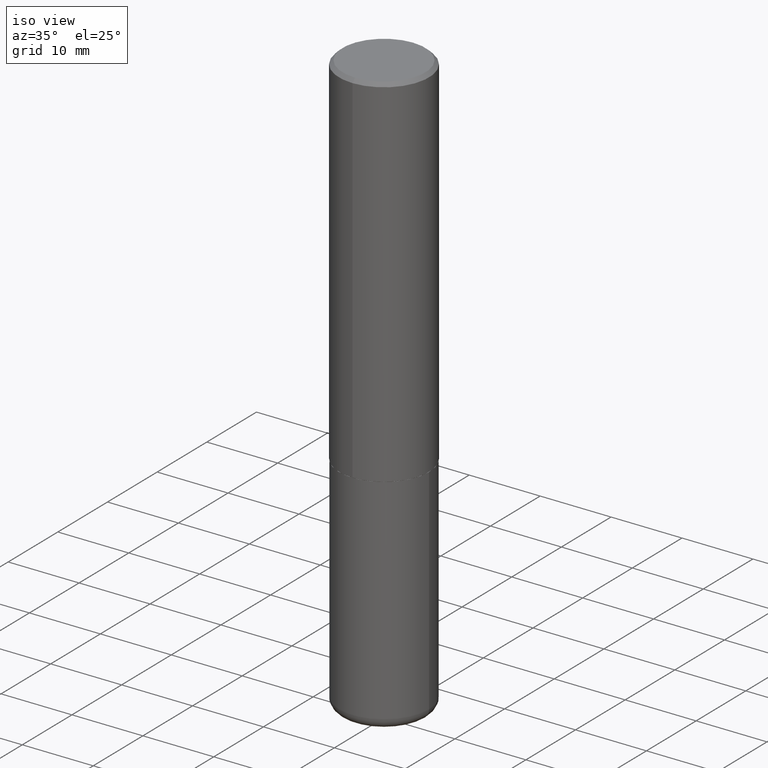
[diagram: clean part render]
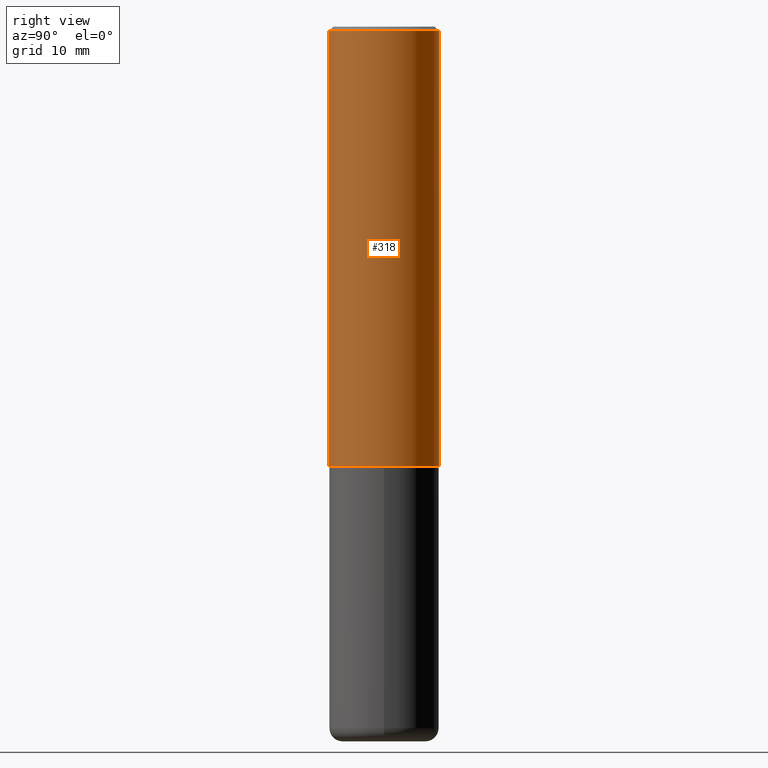
[diagram: tour spotlight — one face highlighted and labeled with its STEP entity id]
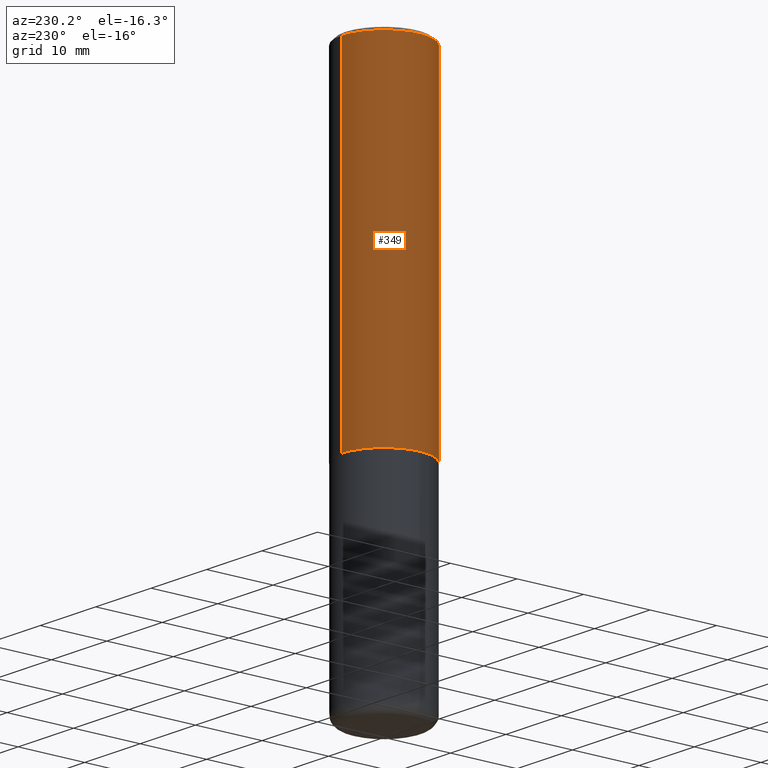
[diagram: tour spotlight — one face highlighted and labeled with its STEP entity id]
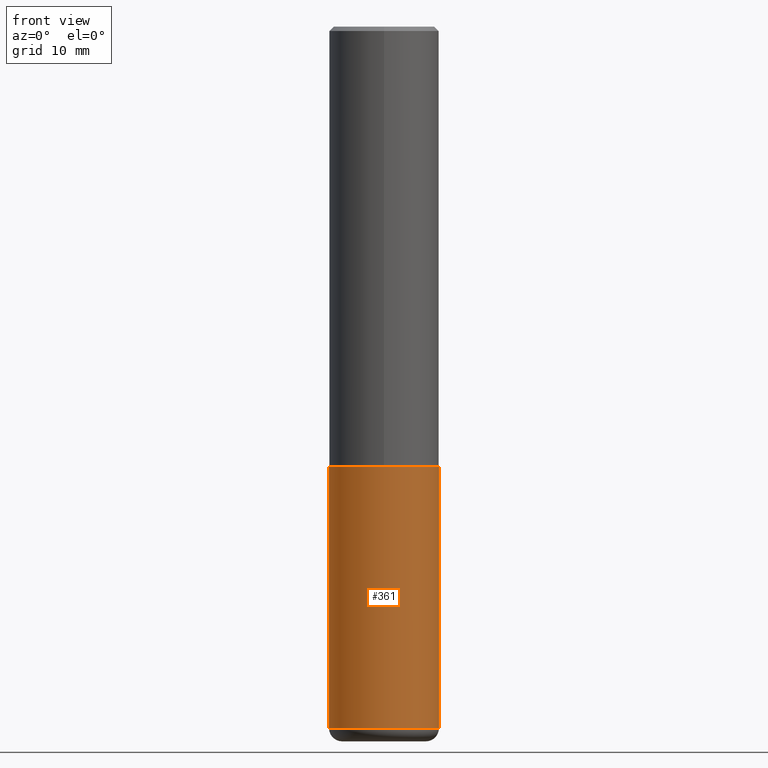
[diagram: tour spotlight — one face highlighted and labeled with its STEP entity id]
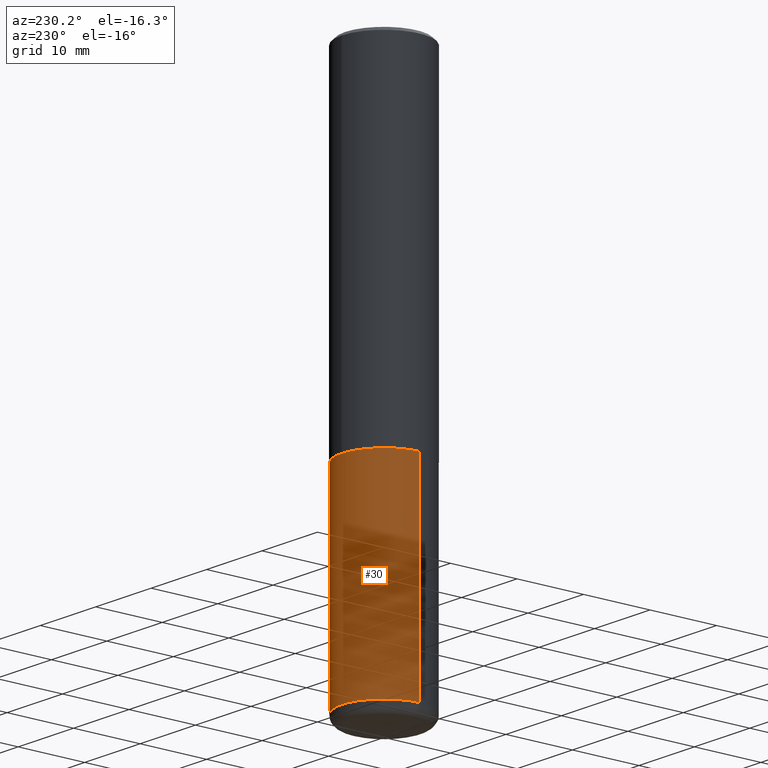
[diagram: tour spotlight — one face highlighted and labeled with its STEP entity id]
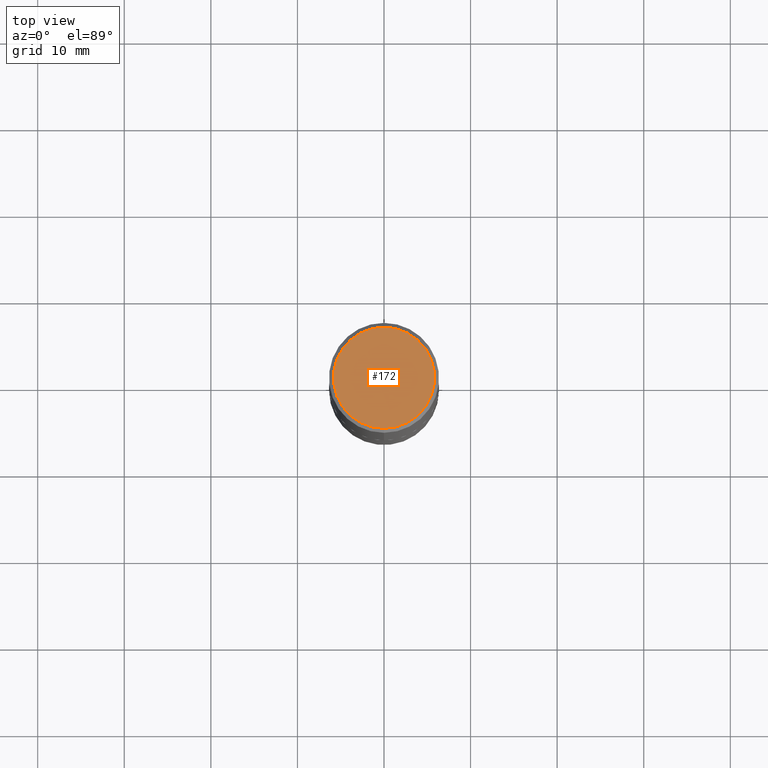
[diagram: tour spotlight — one face highlighted and labeled with its STEP entity id]
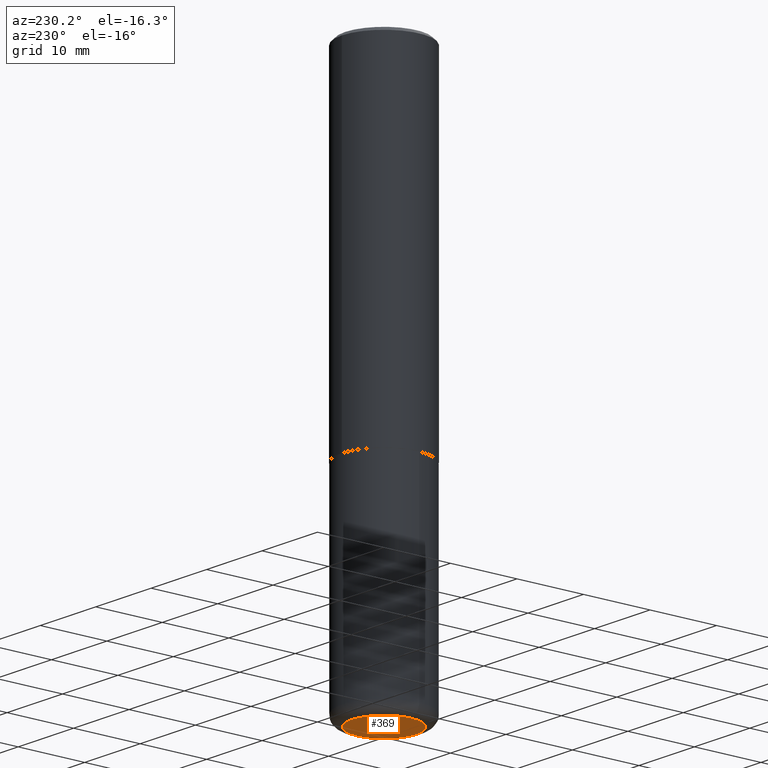
[diagram: tour spotlight — one face highlighted and labeled with its STEP entity id]
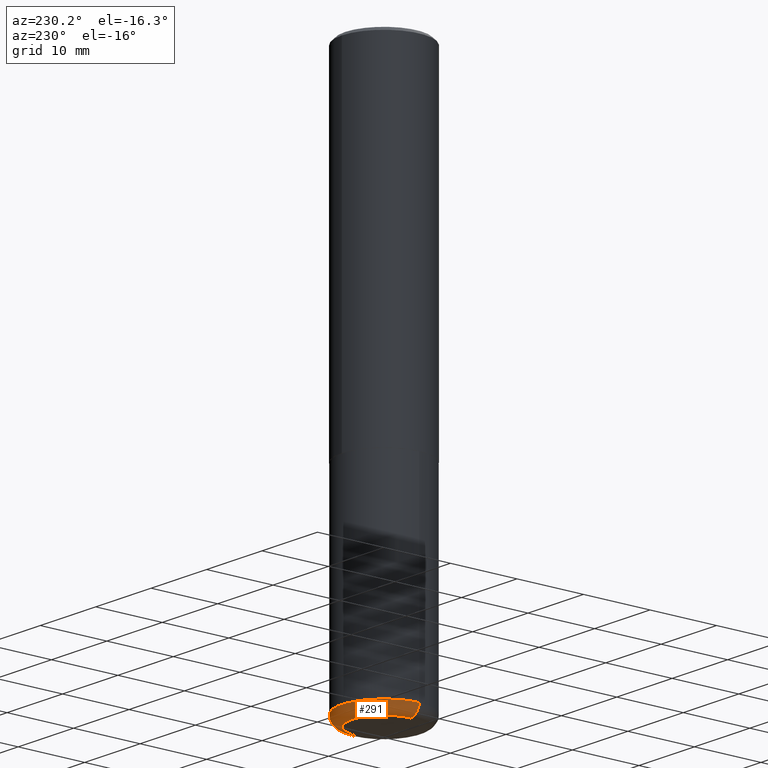
[diagram: tour spotlight — one face highlighted and labeled with its STEP entity id]
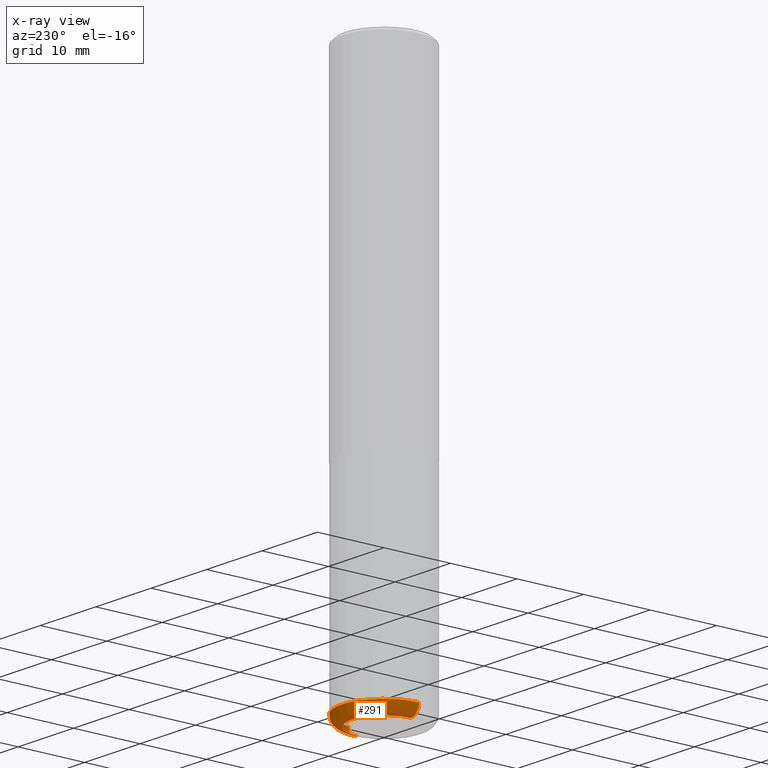
[diagram: x-ray of the same camera — body ghosted, this tour face saturated]
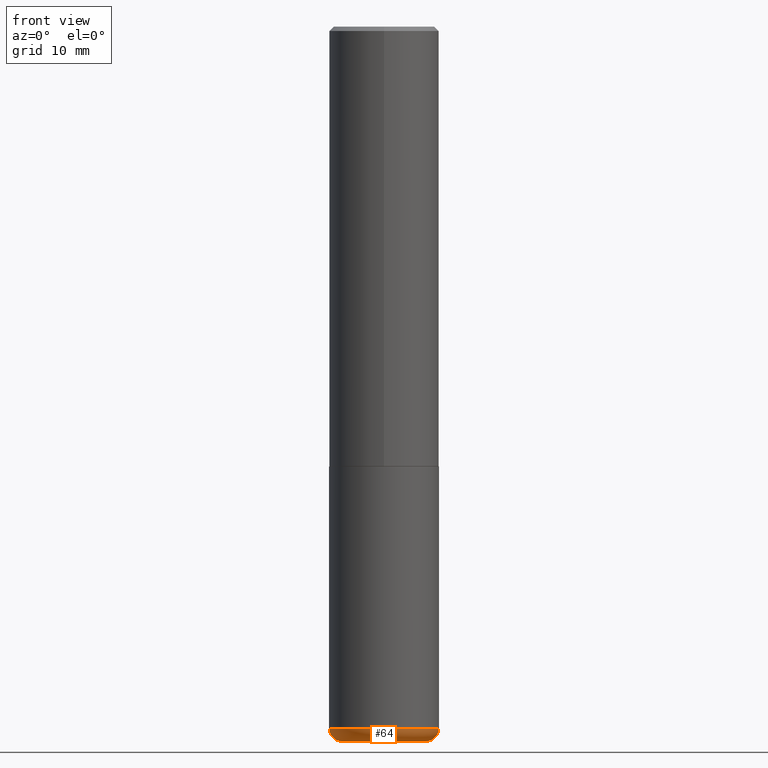
[diagram: tour spotlight — one face highlighted and labeled with its STEP entity id]
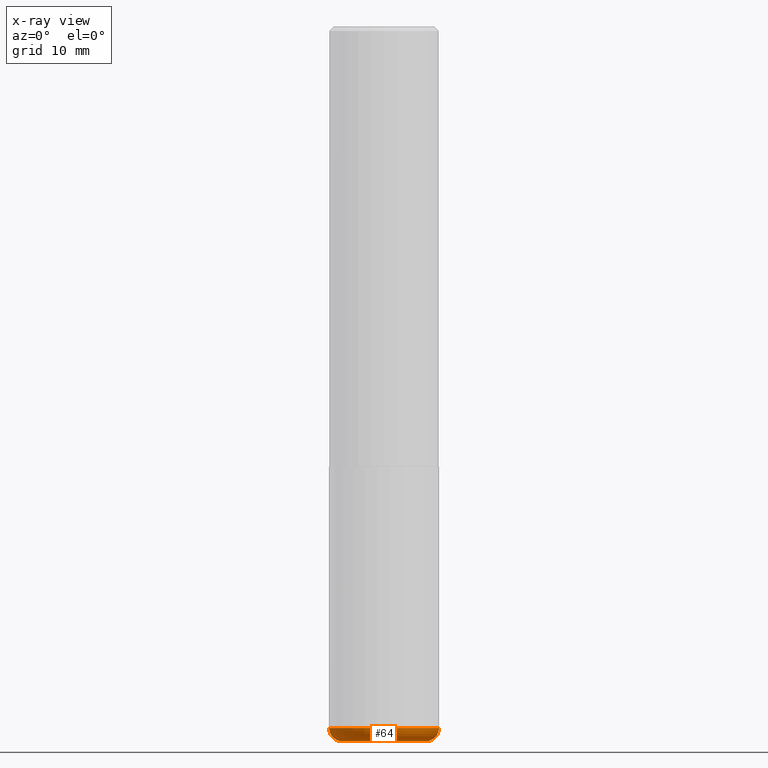
[diagram: x-ray of the same camera — body ghosted, this tour face saturated]
A machine part: a face-by-face anatomy tour. The part has 14 B-rep faces; the first image is the clean iso view, then the 8 largest visible faces are spotlighted one at a time (largest first), each with its STEP entity span.

Face 1 — right view, entity #318. In plain terms, the highlighted cylindrical surface (partial cylindrical patch) has radius 6.35 mm, axis along (-0, 0, 1).
Definition (entity closure, byte-faithful):
#20 = DIRECTION ( 'NONE',  ( -2.444914538755677752E-29, 3.492275081349073750E-15, 1.000000000000000000 ) ) ;
#26 = DIRECTION ( 'NONE',  ( -6.982962677686265922E-15, -1.000000000000000000, 3.500180241882337261E-15 ) ) ;
#34 = VERTEX_POINT ( 'NONE', #405 ) ;
#59 = CARTESIAN_POINT ( 'NONE',  ( -1.745740669421567467E-15, -0.2500000000000001110, 8.730687703372688319E-16 ) ) ;
#76 = CARTESIAN_POINT ( 'NONE',  ( 0.000000000000000000, 0.000000000000000000, 0.000000000000000000 ) ) ;
#92 = VERTEX_POINT ( 'NONE', #192 ) ;
#101 = VECTOR ( 'NONE', #186, 39.37007874015748143 ) ;
#117 = AXIS2_PLACEMENT_3D ( 'NONE', #355, #131, #26 ) ;
#122 = EDGE_CURVE ( 'NONE', #92, #125, #252, .T. ) ;
#125 = VERTEX_POINT ( 'NONE', #317 ) ;
#131 = DIRECTION ( 'NONE',  ( -2.444914538755677752E-29, 3.492275081349073750E-15, 1.000000000000000000 ) ) ;
#144 = VECTOR ( 'NONE', #398, 39.37007874015748143 ) ;
#151 = DIRECTION ( 'NONE',  ( -6.982962677686266711E-15, -1.000000000000000000, 3.278217592397113101E-15 ) ) ;
#155 = CIRCLE ( 'NONE', #117, 0.2500000000000000000 ) ;
#156 = CARTESIAN_POINT ( 'NONE',  ( 1.776356839400251254E-15, 0.2500000000000001110, -8.730687703372688319E-16 ) ) ;
#176 = FACE_OUTER_BOUND ( 'NONE', #325, .T. ) ;
#183 = EDGE_CURVE ( 'NONE', #34, #92, #215, .T. ) ;
#186 = DIRECTION ( 'NONE',  ( -2.444914538755678032E-29, 3.492275081349073750E-15, 1.000000000000000000 ) ) ;
#192 = CARTESIAN_POINT ( 'NONE',  ( 1.776356839400276103E-15, 0.2499999999999933109, -1.999000000000000776 ) ) ;
#209 = AXIS2_PLACEMENT_3D ( 'NONE', #76, #212, #266 ) ;
#212 = DIRECTION ( 'NONE',  ( -2.444914538755677752E-29, 3.492275081349073750E-15, 1.000000000000000000 ) ) ;
#214 = LINE ( 'NONE', #59, #144 ) ;
#215 = CIRCLE ( 'NONE', #353, 0.2500000000000002220 ) ;
#242 = VERTEX_POINT ( 'NONE', #352 ) ;
#252 = LINE ( 'NONE', #156, #101 ) ;
#266 = DIRECTION ( 'NONE',  ( -6.982962677686266711E-15, -1.000000000000000000, 3.492275081349073750E-15 ) ) ;
#270 = ORIENTED_EDGE ( 'NONE', *, *, #304, .F. ) ;
#282 = EDGE_CURVE ( 'NONE', #242, #125, #155, .T. ) ;
#304 = EDGE_CURVE ( 'NONE', #34, #242, #214, .T. ) ;
#317 = CARTESIAN_POINT ( 'NONE',  ( 1.745740669421566875E-15, 0.2499999999999999167, -0.02000000000000093023 ) ) ;
#318 = ADVANCED_FACE ( 'NONE', ( #176 ), #397, .T. ) ;
#325 = EDGE_LOOP ( 'NONE', ( #368, #341, #396, #270 ) ) ;
#341 = ORIENTED_EDGE ( 'NONE', *, *, #122, .T. ) ;
#344 = CARTESIAN_POINT ( 'NONE',  ( 4.887384162972599193E-29, -6.981057887616797828E-15, -1.998999999999999888 ) ) ;
#352 = CARTESIAN_POINT ( 'NONE',  ( -1.715124499442882299E-15, -0.2500000000000000555, -0.01999999999999918163 ) ) ;
#353 = AXIS2_PLACEMENT_3D ( 'NONE', #344, #20, #151 ) ;
#355 = CARTESIAN_POINT ( 'NONE',  ( 4.889829077511369061E-31, -6.984550162698166284E-17, -0.02000000000000005593 ) ) ;
#368 = ORIENTED_EDGE ( 'NONE', *, *, #183, .T. ) ;
#396 = ORIENTED_EDGE ( 'NONE', *, *, #282, .F. ) ;
#397 = CYLINDRICAL_SURFACE ( 'NONE', #209, 0.2500000000000001110 ) ;
#398 = DIRECTION ( 'NONE',  ( -2.444914538755678032E-29, 3.492275081349073750E-15, 1.000000000000000000 ) ) ;
#405 = CARTESIAN_POINT ( 'NONE',  ( -1.745740669421519346E-15, -0.2500000000000072164, -1.998999999999999000 ) ) ;

Face 2 — auxiliary view, entity #349. In plain terms, the highlighted cylindrical surface (partial cylindrical patch) has radius 6.35 mm, axis along (-0, 0, 1).
Definition (entity closure, byte-faithful):
#23 = AXIS2_PLACEMENT_3D ( 'NONE', #269, #72, #233 ) ;
#33 = CIRCLE ( 'NONE', #174, 0.2500000000000000000 ) ;
#34 = VERTEX_POINT ( 'NONE', #405 ) ;
#59 = CARTESIAN_POINT ( 'NONE',  ( -1.745740669421567467E-15, -0.2500000000000001110, 8.730687703372688319E-16 ) ) ;
#72 = DIRECTION ( 'NONE',  ( -2.444914538755677752E-29, 3.492275081349073750E-15, 1.000000000000000000 ) ) ;
#74 = AXIS2_PLACEMENT_3D ( 'NONE', #202, #260, #389 ) ;
#92 = VERTEX_POINT ( 'NONE', #192 ) ;
#97 = CYLINDRICAL_SURFACE ( 'NONE', #23, 0.2500000000000001110 ) ;
#99 = FACE_OUTER_BOUND ( 'NONE', #302, .T. ) ;
#101 = VECTOR ( 'NONE', #186, 39.37007874015748143 ) ;
#122 = EDGE_CURVE ( 'NONE', #92, #125, #252, .T. ) ;
#125 = VERTEX_POINT ( 'NONE', #317 ) ;
#137 = ORIENTED_EDGE ( 'NONE', *, *, #122, .F. ) ;
#138 = ORIENTED_EDGE ( 'NONE', *, *, #243, .T. ) ;
#144 = VECTOR ( 'NONE', #398, 39.37007874015748143 ) ;
#156 = CARTESIAN_POINT ( 'NONE',  ( 1.776356839400251254E-15, 0.2500000000000001110, -8.730687703372688319E-16 ) ) ;
#174 = AXIS2_PLACEMENT_3D ( 'NONE', #356, #263, #328 ) ;
#186 = DIRECTION ( 'NONE',  ( -2.444914538755678032E-29, 3.492275081349073750E-15, 1.000000000000000000 ) ) ;
#192 = CARTESIAN_POINT ( 'NONE',  ( 1.776356839400276103E-15, 0.2499999999999933109, -1.999000000000000776 ) ) ;
#202 = CARTESIAN_POINT ( 'NONE',  ( 4.887384162972599193E-29, -6.981057887616797828E-15, -1.998999999999999888 ) ) ;
#214 = LINE ( 'NONE', #59, #144 ) ;
#233 = DIRECTION ( 'NONE',  ( -6.982962677686266711E-15, -1.000000000000000000, 3.492275081349073750E-15 ) ) ;
#242 = VERTEX_POINT ( 'NONE', #352 ) ;
#243 = EDGE_CURVE ( 'NONE', #92, #34, #274, .T. ) ;
#252 = LINE ( 'NONE', #156, #101 ) ;
#256 = EDGE_CURVE ( 'NONE', #125, #242, #33, .T. ) ;
#260 = DIRECTION ( 'NONE',  ( -2.444914538755677752E-29, 3.492275081349073750E-15, 1.000000000000000000 ) ) ;
#263 = DIRECTION ( 'NONE',  ( -2.444914538755677752E-29, 3.492275081349073750E-15, 1.000000000000000000 ) ) ;
#269 = CARTESIAN_POINT ( 'NONE',  ( 0.000000000000000000, 0.000000000000000000, 0.000000000000000000 ) ) ;
#274 = CIRCLE ( 'NONE', #74, 0.2500000000000002220 ) ;
#276 = ORIENTED_EDGE ( 'NONE', *, *, #256, .F. ) ;
#302 = EDGE_LOOP ( 'NONE', ( #137, #138, #357, #276 ) ) ;
#304 = EDGE_CURVE ( 'NONE', #34, #242, #214, .T. ) ;
#317 = CARTESIAN_POINT ( 'NONE',  ( 1.745740669421566875E-15, 0.2499999999999999167, -0.02000000000000093023 ) ) ;
#328 = DIRECTION ( 'NONE',  ( -6.982962677686265922E-15, -1.000000000000000000, 3.500180241882337261E-15 ) ) ;
#349 = ADVANCED_FACE ( 'NONE', ( #99 ), #97, .T. ) ;
#352 = CARTESIAN_POINT ( 'NONE',  ( -1.715124499442882299E-15, -0.2500000000000000555, -0.01999999999999918163 ) ) ;
#356 = CARTESIAN_POINT ( 'NONE',  ( 4.889829077511369061E-31, -6.984550162698166284E-17, -0.02000000000000005593 ) ) ;
#357 = ORIENTED_EDGE ( 'NONE', *, *, #304, .T. ) ;
#389 = DIRECTION ( 'NONE',  ( -6.982962677686266711E-15, -1.000000000000000000, 3.278217592397113101E-15 ) ) ;
#398 = DIRECTION ( 'NONE',  ( -2.444914538755678032E-29, 3.492275081349073750E-15, 1.000000000000000000 ) ) ;
#405 = CARTESIAN_POINT ( 'NONE',  ( -1.745740669421519346E-15, -0.2500000000000072164, -1.998999999999999000 ) ) ;

Face 3 — front view, entity #361. In plain terms, the highlighted cylindrical surface (partial cylindrical patch) has radius 6.35 mm, axis along (-0, 0, 1).
Definition (entity closure, byte-faithful):
#4 = LINE ( 'NONE', #234, #316 ) ;
#6 = ORIENTED_EDGE ( 'NONE', *, *, #71, .F. ) ;
#27 = DIRECTION ( 'NONE',  ( 1.000000000000000000, -6.982962677686263555E-15, 0.000000000000000000 ) ) ;
#35 = EDGE_CURVE ( 'NONE', #44, #109, #107, .T. ) ;
#44 = VERTEX_POINT ( 'NONE', #120 ) ;
#46 = CIRCLE ( 'NONE', #330, 0.2500000000000000000 ) ;
#50 = DIRECTION ( 'NONE',  ( 1.000000000000000000, -6.982962677686266711E-15, 4.876176775795935793E-29 ) ) ;
#53 = CARTESIAN_POINT ( 'NONE',  ( 0.000000000000000000, 0.000000000000000000, 0.000000000000000000 ) ) ;
#57 = DIRECTION ( 'NONE',  ( 1.000000000000000000, -6.982962677686266711E-15, 0.000000000000000000 ) ) ;
#58 = DIRECTION ( 'NONE',  ( -2.445468806185136877E-29, 3.491481338843145188E-15, 1.000000000000000000 ) ) ;
#71 = EDGE_CURVE ( 'NONE', #169, #329, #46, .T. ) ;
#96 = ORIENTED_EDGE ( 'NONE', *, *, #35, .T. ) ;
#100 = EDGE_CURVE ( 'NONE', #109, #329, #286, .T. ) ;
#107 = CIRCLE ( 'NONE', #410, 0.2499999999999999722 ) ;
#109 = VERTEX_POINT ( 'NONE', #285 ) ;
#116 = CARTESIAN_POINT ( 'NONE',  ( 7.801045491730585789E-29, -1.113782547090963453E-14, -3.189999999999999947 ) ) ;
#120 = CARTESIAN_POINT ( 'NONE',  ( -0.2499999999999999167, -9.361468631509385644E-15, -3.189999999999999947 ) ) ;
#157 = DIRECTION ( 'NONE',  ( -2.445468806185136597E-29, 3.491481338843145583E-15, 1.000000000000000000 ) ) ;
#169 = VERTEX_POINT ( 'NONE', #190 ) ;
#187 = DIRECTION ( 'NONE',  ( -2.445468806185136597E-29, 3.491481338843145583E-15, 1.000000000000000000 ) ) ;
#190 = CARTESIAN_POINT ( 'NONE',  ( -0.2500000000000000000, -7.284037234897712778E-15, -2.000000000000000000 ) ) ;
#210 = CYLINDRICAL_SURFACE ( 'NONE', #416, 0.2500000000000000000 ) ;
#218 = CARTESIAN_POINT ( 'NONE',  ( 4.890937612370273194E-29, -6.982962677686291165E-15, -2.000000000000000000 ) ) ;
#225 = EDGE_CURVE ( 'NONE', #44, #169, #4, .T. ) ;
#226 = DIRECTION ( 'NONE',  ( -2.445468806185136877E-29, 3.491481338843145188E-15, 1.000000000000000000 ) ) ;
#234 = CARTESIAN_POINT ( 'NONE',  ( -0.2500000000000000000, 1.776356839400250465E-15, -1.229733772563726445E-29 ) ) ;
#236 = VECTOR ( 'NONE', #58, 39.37007874015748143 ) ;
#285 = CARTESIAN_POINT ( 'NONE',  ( 0.2499999999999999167, -1.288356614033120121E-14, -3.189999999999999947 ) ) ;
#286 = LINE ( 'NONE', #372, #236 ) ;
#294 = FACE_OUTER_BOUND ( 'NONE', #386, .T. ) ;
#298 = ORIENTED_EDGE ( 'NONE', *, *, #100, .T. ) ;
#316 = VECTOR ( 'NONE', #226, 39.37007874015748143 ) ;
#329 = VERTEX_POINT ( 'NONE', #339 ) ;
#330 = AXIS2_PLACEMENT_3D ( 'NONE', #218, #157, #57 ) ;
#337 = DIRECTION ( 'NONE',  ( -2.445468806185136597E-29, 3.491481338843145583E-15, 1.000000000000000000 ) ) ;
#339 = CARTESIAN_POINT ( 'NONE',  ( 0.2500000000000000000, -8.728703347107857054E-15, -2.000000000000000000 ) ) ;
#361 = ADVANCED_FACE ( 'NONE', ( #294 ), #210, .T. ) ;
#370 = ORIENTED_EDGE ( 'NONE', *, *, #225, .F. ) ;
#372 = CARTESIAN_POINT ( 'NONE',  ( 0.2500000000000000000, -1.745740669421566678E-15, 1.219044193948983948E-29 ) ) ;
#386 = EDGE_LOOP ( 'NONE', ( #370, #96, #298, #6 ) ) ;
#410 = AXIS2_PLACEMENT_3D ( 'NONE', #116, #187, #27 ) ;
#416 = AXIS2_PLACEMENT_3D ( 'NONE', #53, #337, #50 ) ;

Face 4 — auxiliary view, entity #30. In plain terms, the highlighted cylindrical surface (partial cylindrical patch) has radius 6.35 mm, axis along (-0, 0, 1).
Definition (entity closure, byte-faithful):
#1 = CARTESIAN_POINT ( 'NONE',  ( 4.890937612370273194E-29, -6.982962677686291165E-15, -2.000000000000000000 ) ) ;
#4 = LINE ( 'NONE', #234, #316 ) ;
#30 = ADVANCED_FACE ( 'NONE', ( #79 ), #213, .T. ) ;
#44 = VERTEX_POINT ( 'NONE', #120 ) ;
#52 = ORIENTED_EDGE ( 'NONE', *, *, #100, .F. ) ;
#58 = DIRECTION ( 'NONE',  ( -2.445468806185136877E-29, 3.491481338843145188E-15, 1.000000000000000000 ) ) ;
#63 = DIRECTION ( 'NONE',  ( -2.445468806185136597E-29, 3.491481338843145583E-15, 1.000000000000000000 ) ) ;
#65 = DIRECTION ( 'NONE',  ( 1.000000000000000000, -6.982962677686266711E-15, 4.876176775795935793E-29 ) ) ;
#70 = CIRCLE ( 'NONE', #324, 0.2499999999999999722 ) ;
#75 = EDGE_LOOP ( 'NONE', ( #331, #207, #203, #52 ) ) ;
#79 = FACE_OUTER_BOUND ( 'NONE', #75, .T. ) ;
#100 = EDGE_CURVE ( 'NONE', #109, #329, #286, .T. ) ;
#109 = VERTEX_POINT ( 'NONE', #285 ) ;
#120 = CARTESIAN_POINT ( 'NONE',  ( -0.2499999999999999167, -9.361468631509385644E-15, -3.189999999999999947 ) ) ;
#128 = DIRECTION ( 'NONE',  ( 1.000000000000000000, -6.982962677686266711E-15, 0.000000000000000000 ) ) ;
#169 = VERTEX_POINT ( 'NONE', #190 ) ;
#181 = AXIS2_PLACEMENT_3D ( 'NONE', #1, #257, #128 ) ;
#190 = CARTESIAN_POINT ( 'NONE',  ( -0.2500000000000000000, -7.284037234897712778E-15, -2.000000000000000000 ) ) ;
#194 = DIRECTION ( 'NONE',  ( 1.000000000000000000, -6.982962677686263555E-15, 0.000000000000000000 ) ) ;
#203 = ORIENTED_EDGE ( 'NONE', *, *, #219, .F. ) ;
#207 = ORIENTED_EDGE ( 'NONE', *, *, #225, .T. ) ;
#213 = CYLINDRICAL_SURFACE ( 'NONE', #401, 0.2500000000000000000 ) ;
#219 = EDGE_CURVE ( 'NONE', #329, #169, #343, .T. ) ;
#225 = EDGE_CURVE ( 'NONE', #44, #169, #4, .T. ) ;
#226 = DIRECTION ( 'NONE',  ( -2.445468806185136877E-29, 3.491481338843145188E-15, 1.000000000000000000 ) ) ;
#234 = CARTESIAN_POINT ( 'NONE',  ( -0.2500000000000000000, 1.776356839400250465E-15, -1.229733772563726445E-29 ) ) ;
#236 = VECTOR ( 'NONE', #58, 39.37007874015748143 ) ;
#257 = DIRECTION ( 'NONE',  ( -2.445468806185136597E-29, 3.491481338843145583E-15, 1.000000000000000000 ) ) ;
#284 = CARTESIAN_POINT ( 'NONE',  ( 0.000000000000000000, 0.000000000000000000, 0.000000000000000000 ) ) ;
#285 = CARTESIAN_POINT ( 'NONE',  ( 0.2499999999999999167, -1.288356614033120121E-14, -3.189999999999999947 ) ) ;
#286 = LINE ( 'NONE', #372, #236 ) ;
#316 = VECTOR ( 'NONE', #226, 39.37007874015748143 ) ;
#324 = AXIS2_PLACEMENT_3D ( 'NONE', #381, #63, #194 ) ;
#329 = VERTEX_POINT ( 'NONE', #339 ) ;
#331 = ORIENTED_EDGE ( 'NONE', *, *, #417, .T. ) ;
#339 = CARTESIAN_POINT ( 'NONE',  ( 0.2500000000000000000, -8.728703347107857054E-15, -2.000000000000000000 ) ) ;
#343 = CIRCLE ( 'NONE', #181, 0.2500000000000000000 ) ;
#372 = CARTESIAN_POINT ( 'NONE',  ( 0.2500000000000000000, -1.745740669421566678E-15, 1.219044193948983948E-29 ) ) ;
#376 = DIRECTION ( 'NONE',  ( -2.445468806185136597E-29, 3.491481338843145583E-15, 1.000000000000000000 ) ) ;
#381 = CARTESIAN_POINT ( 'NONE',  ( 7.801045491730585789E-29, -1.113782547090963453E-14, -3.189999999999999947 ) ) ;
#401 = AXIS2_PLACEMENT_3D ( 'NONE', #284, #376, #65 ) ;
#417 = EDGE_CURVE ( 'NONE', #109, #44, #70, .T. ) ;

Face 5 — top view, entity #172. In plain terms, the highlighted planar face has unit normal (0, -0, -1).
Definition (entity closure, byte-faithful):
#29 = PLANE ( 'NONE',  #402 ) ;
#39 = VERTEX_POINT ( 'NONE', #112 ) ;
#51 = EDGE_CURVE ( 'NONE', #39, #300, #373, .T. ) ;
#81 = CARTESIAN_POINT ( 'NONE',  ( 1.675911042644703774E-15, 0.2299999999999998990, -7.048649206616136781E-16 ) ) ;
#83 = DIRECTION ( 'NONE',  ( -2.444914538755677752E-29, 3.492275081349073750E-15, 1.000000000000000000 ) ) ;
#112 = CARTESIAN_POINT ( 'NONE',  ( -1.646519519465166770E-15, -0.2299999999999998990, 9.015816167589595013E-16 ) ) ;
#129 = CIRCLE ( 'NONE', #262, 0.2299999999999998990 ) ;
#136 = AXIS2_PLACEMENT_3D ( 'NONE', #154, #83, #378 ) ;
#154 = CARTESIAN_POINT ( 'NONE',  ( -2.404777551521915738E-45, 3.434944079330397096E-31, 9.835834804867292393E-17 ) ) ;
#172 = ADVANCED_FACE ( 'NONE', ( #319 ), #29, .F. ) ;
#180 = DIRECTION ( 'NONE',  ( -2.444914538755677752E-29, 3.492275081349073750E-15, 1.000000000000000000 ) ) ;
#216 = DIRECTION ( 'NONE',  ( 2.444914538755677191E-29, -3.492275081349073750E-15, -1.000000000000000000 ) ) ;
#262 = AXIS2_PLACEMENT_3D ( 'NONE', #403, #180, #310 ) ;
#278 = CARTESIAN_POINT ( 'NONE',  ( 1.606081415867840476E-15, 0.2299999999999998990, -7.540440946859502079E-16 ) ) ;
#289 = ORIENTED_EDGE ( 'NONE', *, *, #379, .T. ) ;
#300 = VERTEX_POINT ( 'NONE', #81 ) ;
#310 = DIRECTION ( 'NONE',  ( -6.982962677686265922E-15, -1.000000000000000000, 3.492275081349073750E-15 ) ) ;
#319 = FACE_OUTER_BOUND ( 'NONE', #338, .T. ) ;
#338 = EDGE_LOOP ( 'NONE', ( #289, #418 ) ) ;
#373 = CIRCLE ( 'NONE', #136, 0.2299999999999998990 ) ;
#378 = DIRECTION ( 'NONE',  ( -6.982962677686265922E-15, -1.000000000000000000, 3.492275081349073750E-15 ) ) ;
#379 = EDGE_CURVE ( 'NONE', #300, #39, #129, .T. ) ;
#402 = AXIS2_PLACEMENT_3D ( 'NONE', #278, #216, #409 ) ;
#403 = CARTESIAN_POINT ( 'NONE',  ( -2.404777551521915738E-45, 3.434944079330397096E-31, 9.835834804867292393E-17 ) ) ;
#409 = DIRECTION ( 'NONE',  ( 6.982962677686265922E-15, 1.000000000000000000, -3.492275081349073750E-15 ) ) ;
#418 = ORIENTED_EDGE ( 'NONE', *, *, #51, .T. ) ;

Face 6 — auxiliary view, entity #369. In plain terms, the highlighted planar face has unit normal (0, -0, -1).
Definition (entity closure, byte-faithful):
#11 = AXIS2_PLACEMENT_3D ( 'NONE', #41, #49, #271 ) ;
#14 = ORIENTED_EDGE ( 'NONE', *, *, #314, .F. ) ;
#41 = CARTESIAN_POINT ( 'NONE',  ( 7.947773620101693940E-29, -1.134731435124022443E-14, -3.250000000000000000 ) ) ;
#49 = DIRECTION ( 'NONE',  ( -2.445468806185136597E-29, 3.491481338843145583E-15, 1.000000000000000000 ) ) ;
#61 = DIRECTION ( 'NONE',  ( -2.445468806185136597E-29, 3.491481338843145583E-15, 1.000000000000000000 ) ) ;
#68 = ORIENTED_EDGE ( 'NONE', *, *, #93, .F. ) ;
#77 = DIRECTION ( 'NONE',  ( -1.000000000000000000, 6.982962677686265922E-15, -4.876176775795935793E-29 ) ) ;
#93 = EDGE_CURVE ( 'NONE', #196, #296, #143, .T. ) ;
#140 = FACE_OUTER_BOUND ( 'NONE', #168, .T. ) ;
#143 = CIRCLE ( 'NONE', #415, 0.1899999999999999745 ) ;
#168 = EDGE_LOOP ( 'NONE', ( #14, #68 ) ) ;
#196 = VERTEX_POINT ( 'NONE', #280 ) ;
#237 = AXIS2_PLACEMENT_3D ( 'NONE', #408, #400, #77 ) ;
#271 = DIRECTION ( 'NONE',  ( 1.000000000000000000, -6.982962677686261977E-15, 0.000000000000000000 ) ) ;
#275 = PLANE ( 'NONE',  #237 ) ;
#280 = CARTESIAN_POINT ( 'NONE',  ( -0.1899999999999999745, -9.679375892402709259E-15, -3.250000000000000000 ) ) ;
#283 = CIRCLE ( 'NONE', #11, 0.1899999999999999745 ) ;
#296 = VERTEX_POINT ( 'NONE', #347 ) ;
#314 = EDGE_CURVE ( 'NONE', #296, #196, #283, .T. ) ;
#346 = DIRECTION ( 'NONE',  ( 1.000000000000000000, -6.982962677686261977E-15, 0.000000000000000000 ) ) ;
#347 = CARTESIAN_POINT ( 'NONE',  ( 0.1899999999999999745, -1.267407726000061289E-14, -3.250000000000000000 ) ) ;
#369 = ADVANCED_FACE ( 'NONE', ( #140 ), #275, .T. ) ;
#382 = CARTESIAN_POINT ( 'NONE',  ( 7.947773620101693940E-29, -1.134731435124022443E-14, -3.250000000000000000 ) ) ;
#400 = DIRECTION ( 'NONE',  ( 2.438088387897960049E-29, -3.491481338843145188E-15, -1.000000000000000000 ) ) ;
#408 = CARTESIAN_POINT ( 'NONE',  ( 7.947773620101693940E-29, -1.134731435124022443E-14, -3.250000000000000000 ) ) ;
#415 = AXIS2_PLACEMENT_3D ( 'NONE', #382, #61, #346 ) ;

Face 7 — auxiliary view, entity #291. An x-ray twin of the same camera follows (body ghosted, this face saturated) — the face is partly hidden behind the body. In plain terms, the highlighted toroidal blend (fillet) surface has major radius 4.826 mm and minor (blend) radius 1.524 mm.
Definition (entity closure, byte-faithful):
#5 = EDGE_CURVE ( 'NONE', #296, #109, #32, .T. ) ;
#11 = AXIS2_PLACEMENT_3D ( 'NONE', #41, #49, #271 ) ;
#12 = DIRECTION ( 'NONE',  ( -6.982962677686266711E-15, -1.000000000000000000, 3.491481338843145583E-15 ) ) ;
#32 = CIRCLE ( 'NONE', #362, 0.05999999999999994227 ) ;
#41 = CARTESIAN_POINT ( 'NONE',  ( 7.947773620101693940E-29, -1.134731435124022443E-14, -3.250000000000000000 ) ) ;
#44 = VERTEX_POINT ( 'NONE', #120 ) ;
#47 = AXIS2_PLACEMENT_3D ( 'NONE', #111, #78, #220 ) ;
#49 = DIRECTION ( 'NONE',  ( -2.445468806185136597E-29, 3.491481338843145583E-15, 1.000000000000000000 ) ) ;
#63 = DIRECTION ( 'NONE',  ( -2.445468806185136597E-29, 3.491481338843145583E-15, 1.000000000000000000 ) ) ;
#70 = CIRCLE ( 'NONE', #324, 0.2499999999999999722 ) ;
#78 = DIRECTION ( 'NONE',  ( -2.445468806185136597E-29, 3.491481338843145583E-15, 1.000000000000000000 ) ) ;
#95 = AXIS2_PLACEMENT_3D ( 'NONE', #290, #235, #126 ) ;
#109 = VERTEX_POINT ( 'NONE', #285 ) ;
#111 = CARTESIAN_POINT ( 'NONE',  ( 7.801045491730585789E-29, -1.113782547090963453E-14, -3.189999999999999947 ) ) ;
#120 = CARTESIAN_POINT ( 'NONE',  ( -0.2499999999999999167, -9.361468631509385644E-15, -3.189999999999999947 ) ) ;
#126 = DIRECTION ( 'NONE',  ( -1.000000000000000000, 7.105427357600997914E-15, 0.000000000000000000 ) ) ;
#163 = ORIENTED_EDGE ( 'NONE', *, *, #417, .F. ) ;
#175 = ORIENTED_EDGE ( 'NONE', *, *, #314, .T. ) ;
#179 = CARTESIAN_POINT ( 'NONE',  ( 0.1899999999999999745, -1.246458837967002615E-14, -3.189999999999999947 ) ) ;
#194 = DIRECTION ( 'NONE',  ( 1.000000000000000000, -6.982962677686263555E-15, 0.000000000000000000 ) ) ;
#196 = VERTEX_POINT ( 'NONE', #280 ) ;
#220 = DIRECTION ( 'NONE',  ( 1.000000000000000000, -6.982962677686265133E-15, 4.883557194083112340E-29 ) ) ;
#235 = DIRECTION ( 'NONE',  ( 7.105427357601001859E-15, 1.000000000000000000, -3.491481338843145583E-15 ) ) ;
#240 = DIRECTION ( 'NONE',  ( 1.000000000000000000, -6.982962677686274599E-15, 0.000000000000000000 ) ) ;
#241 = TOROIDAL_SURFACE ( 'NONE', #47, 0.1899999999999999745, 0.05999999999999994227 ) ;
#244 = FACE_OUTER_BOUND ( 'NONE', #395, .T. ) ;
#264 = ORIENTED_EDGE ( 'NONE', *, *, #5, .F. ) ;
#267 = CIRCLE ( 'NONE', #95, 0.05999999999999994227 ) ;
#268 = EDGE_CURVE ( 'NONE', #196, #44, #267, .T. ) ;
#271 = DIRECTION ( 'NONE',  ( 1.000000000000000000, -6.982962677686261977E-15, 0.000000000000000000 ) ) ;
#280 = CARTESIAN_POINT ( 'NONE',  ( -0.1899999999999999745, -9.679375892402709259E-15, -3.250000000000000000 ) ) ;
#283 = CIRCLE ( 'NONE', #11, 0.1899999999999999745 ) ;
#285 = CARTESIAN_POINT ( 'NONE',  ( 0.2499999999999999167, -1.288356614033120121E-14, -3.189999999999999947 ) ) ;
#290 = CARTESIAN_POINT ( 'NONE',  ( -0.1899999999999999745, -9.787794272965444556E-15, -3.189999999999999947 ) ) ;
#291 = ADVANCED_FACE ( 'NONE', ( #244 ), #241, .T. ) ;
#296 = VERTEX_POINT ( 'NONE', #347 ) ;
#314 = EDGE_CURVE ( 'NONE', #296, #196, #283, .T. ) ;
#324 = AXIS2_PLACEMENT_3D ( 'NONE', #381, #63, #194 ) ;
#347 = CARTESIAN_POINT ( 'NONE',  ( 0.1899999999999999745, -1.267407726000061289E-14, -3.250000000000000000 ) ) ;
#362 = AXIS2_PLACEMENT_3D ( 'NONE', #179, #12, #240 ) ;
#371 = ORIENTED_EDGE ( 'NONE', *, *, #268, .T. ) ;
#381 = CARTESIAN_POINT ( 'NONE',  ( 7.801045491730585789E-29, -1.113782547090963453E-14, -3.189999999999999947 ) ) ;
#395 = EDGE_LOOP ( 'NONE', ( #175, #371, #163, #264 ) ) ;
#417 = EDGE_CURVE ( 'NONE', #109, #44, #70, .T. ) ;

Face 8 — front view, entity #64. An x-ray twin of the same camera follows (body ghosted, this face saturated) — the face is partly hidden behind the body. In plain terms, the highlighted toroidal blend (fillet) surface has major radius 4.826 mm and minor (blend) radius 1.524 mm.
Definition (entity closure, byte-faithful):
#2 = ORIENTED_EDGE ( 'NONE', *, *, #35, .F. ) ;
#5 = EDGE_CURVE ( 'NONE', #296, #109, #32, .T. ) ;
#12 = DIRECTION ( 'NONE',  ( -6.982962677686266711E-15, -1.000000000000000000, 3.491481338843145583E-15 ) ) ;
#27 = DIRECTION ( 'NONE',  ( 1.000000000000000000, -6.982962677686263555E-15, 0.000000000000000000 ) ) ;
#32 = CIRCLE ( 'NONE', #362, 0.05999999999999994227 ) ;
#35 = EDGE_CURVE ( 'NONE', #44, #109, #107, .T. ) ;
#44 = VERTEX_POINT ( 'NONE', #120 ) ;
#61 = DIRECTION ( 'NONE',  ( -2.445468806185136597E-29, 3.491481338843145583E-15, 1.000000000000000000 ) ) ;
#64 = ADVANCED_FACE ( 'NONE', ( #351 ), #197, .T. ) ;
#87 = AXIS2_PLACEMENT_3D ( 'NONE', #224, #245, #348 ) ;
#93 = EDGE_CURVE ( 'NONE', #196, #296, #143, .T. ) ;
#95 = AXIS2_PLACEMENT_3D ( 'NONE', #290, #235, #126 ) ;
#103 = ORIENTED_EDGE ( 'NONE', *, *, #5, .T. ) ;
#107 = CIRCLE ( 'NONE', #410, 0.2499999999999999722 ) ;
#109 = VERTEX_POINT ( 'NONE', #285 ) ;
#116 = CARTESIAN_POINT ( 'NONE',  ( 7.801045491730585789E-29, -1.113782547090963453E-14, -3.189999999999999947 ) ) ;
#120 = CARTESIAN_POINT ( 'NONE',  ( -0.2499999999999999167, -9.361468631509385644E-15, -3.189999999999999947 ) ) ;
#126 = DIRECTION ( 'NONE',  ( -1.000000000000000000, 7.105427357600997914E-15, 0.000000000000000000 ) ) ;
#143 = CIRCLE ( 'NONE', #415, 0.1899999999999999745 ) ;
#148 = EDGE_LOOP ( 'NONE', ( #182, #295, #103, #2 ) ) ;
#179 = CARTESIAN_POINT ( 'NONE',  ( 0.1899999999999999745, -1.246458837967002615E-14, -3.189999999999999947 ) ) ;
#182 = ORIENTED_EDGE ( 'NONE', *, *, #268, .F. ) ;
#187 = DIRECTION ( 'NONE',  ( -2.445468806185136597E-29, 3.491481338843145583E-15, 1.000000000000000000 ) ) ;
#196 = VERTEX_POINT ( 'NONE', #280 ) ;
#197 = TOROIDAL_SURFACE ( 'NONE', #87, 0.1899999999999999745, 0.05999999999999994227 ) ;
#224 = CARTESIAN_POINT ( 'NONE',  ( 7.801045491730585789E-29, -1.113782547090963453E-14, -3.189999999999999947 ) ) ;
#235 = DIRECTION ( 'NONE',  ( 7.105427357601001859E-15, 1.000000000000000000, -3.491481338843145583E-15 ) ) ;
#240 = DIRECTION ( 'NONE',  ( 1.000000000000000000, -6.982962677686274599E-15, 0.000000000000000000 ) ) ;
#245 = DIRECTION ( 'NONE',  ( -2.445468806185136597E-29, 3.491481338843145583E-15, 1.000000000000000000 ) ) ;
#267 = CIRCLE ( 'NONE', #95, 0.05999999999999994227 ) ;
#268 = EDGE_CURVE ( 'NONE', #196, #44, #267, .T. ) ;
#280 = CARTESIAN_POINT ( 'NONE',  ( -0.1899999999999999745, -9.679375892402709259E-15, -3.250000000000000000 ) ) ;
#285 = CARTESIAN_POINT ( 'NONE',  ( 0.2499999999999999167, -1.288356614033120121E-14, -3.189999999999999947 ) ) ;
#290 = CARTESIAN_POINT ( 'NONE',  ( -0.1899999999999999745, -9.787794272965444556E-15, -3.189999999999999947 ) ) ;
#295 = ORIENTED_EDGE ( 'NONE', *, *, #93, .T. ) ;
#296 = VERTEX_POINT ( 'NONE', #347 ) ;
#346 = DIRECTION ( 'NONE',  ( 1.000000000000000000, -6.982962677686261977E-15, 0.000000000000000000 ) ) ;
#347 = CARTESIAN_POINT ( 'NONE',  ( 0.1899999999999999745, -1.267407726000061289E-14, -3.250000000000000000 ) ) ;
#348 = DIRECTION ( 'NONE',  ( 1.000000000000000000, -6.982962677686265133E-15, 4.883557194083112340E-29 ) ) ;
#351 = FACE_OUTER_BOUND ( 'NONE', #148, .T. ) ;
#362 = AXIS2_PLACEMENT_3D ( 'NONE', #179, #12, #240 ) ;
#382 = CARTESIAN_POINT ( 'NONE',  ( 7.947773620101693940E-29, -1.134731435124022443E-14, -3.250000000000000000 ) ) ;
#410 = AXIS2_PLACEMENT_3D ( 'NONE', #116, #187, #27 ) ;
#415 = AXIS2_PLACEMENT_3D ( 'NONE', #382, #61, #346 ) ;